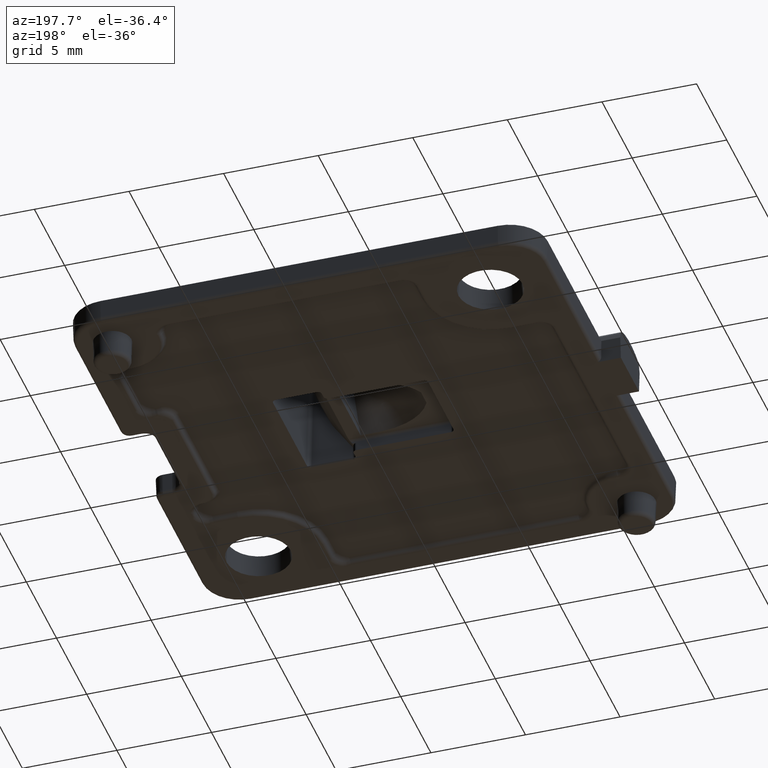
[diagram: clean part render]
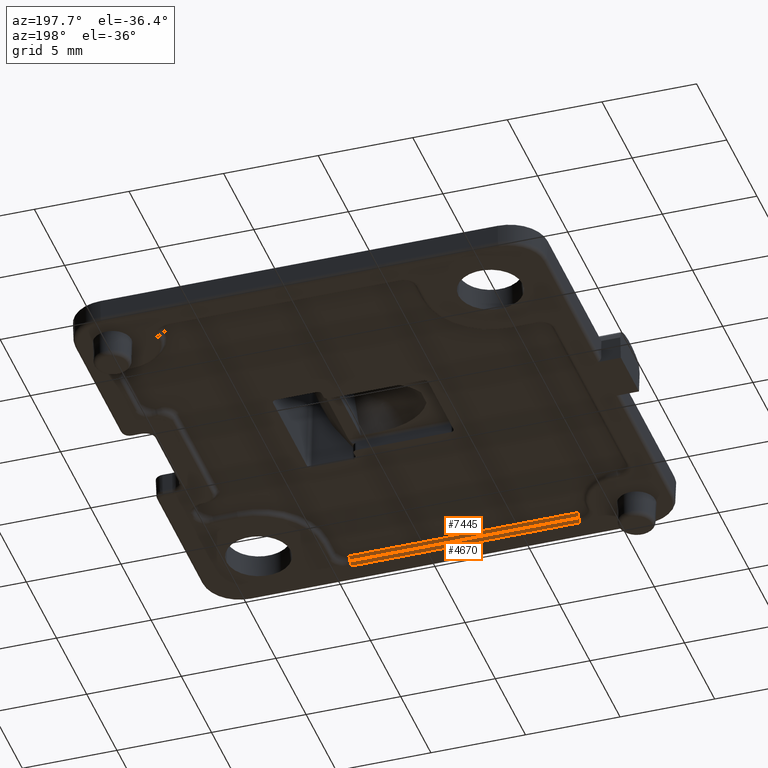
[diagram: same view with one multi-face feature highlighted, each face labeled with its STEP entity id]
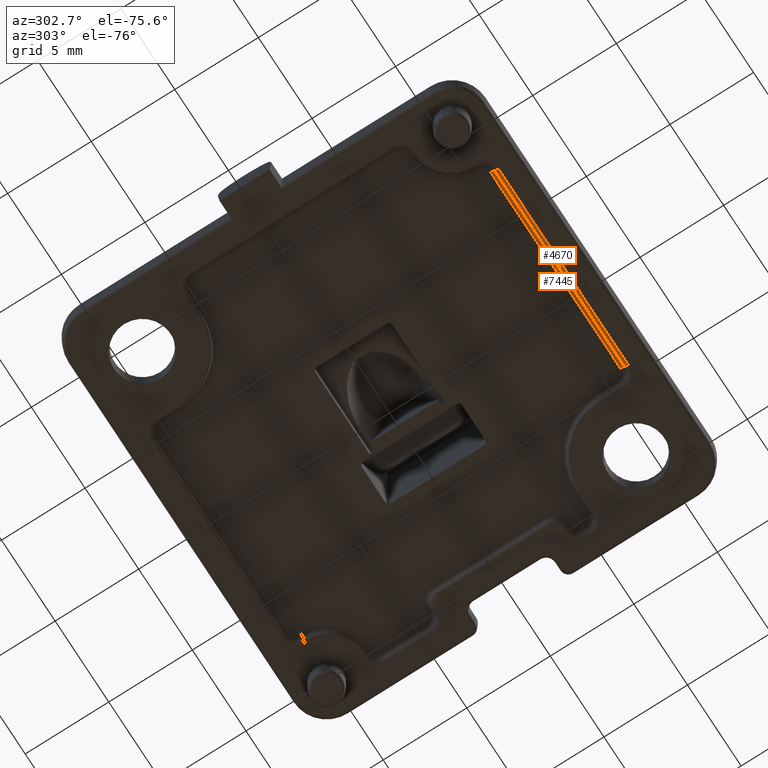
[diagram: same view with one multi-face feature highlighted, each face labeled with its STEP entity id]
A machine part, auxiliary view. The highlighted faces form ONE feature: a constant-radius fillet chain: 2 tangent blend faces with common blend radius 0.25 mm. The faces share edges in the B-rep.
A second angle (auxiliary view) of the same feature is appended — it is thin or edge-on in the first view.
Their STEP definitions:
[1] entity #4670 (Cylinder):
#267 = EDGE_CURVE ( 'NONE', #7238, #5785, #6301, .T. ) ;
#314 = EDGE_CURVE ( 'NONE', #7238, #3998, #7555, .T. ) ;
#320 = AXIS2_PLACEMENT_3D ( 'NONE', #7326, #3596, #7949 ) ;
#389 = EDGE_LOOP ( 'NONE', ( #6948, #7601, #2118, #6005 ) ) ;
#450 = AXIS2_PLACEMENT_3D ( 'NONE', #3462, #7820, #4092 ) ;
#832 = LINE ( 'NONE', #7209, #7426 ) ;
#1323 = CARTESIAN_POINT ( 'NONE',  ( -7.298375703292114400, -11.20635914494629600, 0.0000000000000000000 ) ) ;
#1340 = VECTOR ( 'NONE', #2884, 1000.000000000000000 ) ;
#2118 = ORIENTED_EDGE ( 'NONE', *, *, #7067, .F. ) ;
#2685 = CARTESIAN_POINT ( 'NONE',  ( -7.298375703292114400, -10.97723036019850400, 0.1500000000000008500 ) ) ;
#2884 = DIRECTION ( 'NONE',  ( -1.000000000000000000, -2.569960705150824400E-016, 0.0000000000000000000 ) ) ;
#3225 = CYLINDRICAL_SURFACE ( 'NONE', #7654, 0.2500000000000002200 ) ;
#3377 = VERTEX_POINT ( 'NONE', #1323 ) ;
#3460 = CARTESIAN_POINT ( 'NONE',  ( -8.000000000000000000, -10.97723036019850400, 0.1500000000000000800 ) ) ;
#3462 = CARTESIAN_POINT ( 'NONE',  ( -7.298375703292114400, -11.20635914494629600, 0.2500000000000004400 ) ) ;
#3480 = DIRECTION ( 'NONE',  ( 1.000000000000000000, 2.569960705150824400E-016, -0.0000000000000000000 ) ) ;
#3596 = DIRECTION ( 'NONE',  ( -1.000000000000000000, 0.0000000000000000000, -0.0000000000000000000 ) ) ;
#3655 = CARTESIAN_POINT ( 'NONE',  ( 4.798375703292118800, -10.97723036019850100, 0.1499999999999996900 ) ) ;
#3998 = VERTEX_POINT ( 'NONE', #7363 ) ;
#4048 = CARTESIAN_POINT ( 'NONE',  ( -8.000000000000000000, -11.20635914494629800, 0.2500000000000000000 ) ) ;
#4092 = DIRECTION ( 'NONE',  ( 0.0000000000000000000, 0.0000000000000000000, 1.000000000000000000 ) ) ;
#4243 = EDGE_CURVE ( 'NONE', #3377, #3998, #832, .T. ) ;
#4670 = ADVANCED_FACE ( 'NONE', ( #6553 ), #3225, .T. ) ;
#5353 = DIRECTION ( 'NONE',  ( -1.000000000000000000, -2.569960705150824400E-016, 0.0000000000000000000 ) ) ;
#5548 = CIRCLE ( 'NONE', #450, 0.2500000000000000000 ) ;
#5785 = VERTEX_POINT ( 'NONE', #2685 ) ;
#5989 = DIRECTION ( 'NONE',  ( 0.0000000000000000000, -1.000000000000000000, 0.0000000000000000000 ) ) ;
#6005 = ORIENTED_EDGE ( 'NONE', *, *, #267, .F. ) ;
#6301 = LINE ( 'NONE', #3460, #1340 ) ;
#6553 = FACE_OUTER_BOUND ( 'NONE', #389, .T. ) ;
#6948 = ORIENTED_EDGE ( 'NONE', *, *, #314, .T. ) ;
#7067 = EDGE_CURVE ( 'NONE', #5785, #3377, #5548, .T. ) ;
#7209 = CARTESIAN_POINT ( 'NONE',  ( -10.49999999999999300, -11.20635914494629600, 0.0000000000000000000 ) ) ;
#7238 = VERTEX_POINT ( 'NONE', #3655 ) ;
#7326 = CARTESIAN_POINT ( 'NONE',  ( 4.798375703292118800, -11.20635914494629200, 0.2500000000000002200 ) ) ;
#7363 = CARTESIAN_POINT ( 'NONE',  ( 4.798375703292118800, -11.20635914494629400, 0.0000000000000000000 ) ) ;
#7426 = VECTOR ( 'NONE', #3480, 1000.000000000000000 ) ;
#7555 = CIRCLE ( 'NONE', #320, 0.2500000000000000000 ) ;
#7601 = ORIENTED_EDGE ( 'NONE', *, *, #4243, .F. ) ;
#7654 = AXIS2_PLACEMENT_3D ( 'NONE', #4048, #5353, #5989 ) ;
#7820 = DIRECTION ( 'NONE',  ( -1.000000000000000000, 0.0000000000000000000, -0.0000000000000000000 ) ) ;
#7949 = DIRECTION ( 'NONE',  ( 0.0000000000000000000, 0.0000000000000000000, 1.000000000000000000 ) ) ;
[2] entity #7445 (Cylinder):
#52 = CIRCLE ( 'NONE', #286, 0.2500000000000000000 ) ;
#103 = EDGE_CURVE ( 'NONE', #7394, #1566, #3966, .T. ) ;
#267 = EDGE_CURVE ( 'NONE', #7238, #5785, #6301, .T. ) ;
#286 = AXIS2_PLACEMENT_3D ( 'NONE', #3290, #7649, #3926 ) ;
#419 = FACE_OUTER_BOUND ( 'NONE', #1114, .T. ) ;
#483 = VECTOR ( 'NONE', #745, 1000.000000000000000 ) ;
#569 = DIRECTION ( 'NONE',  ( 1.000000000000000000, 0.0000000000000000000, -0.0000000000000000000 ) ) ;
#745 = DIRECTION ( 'NONE',  ( -1.000000000000000000, -2.569960705150824400E-016, 0.0000000000000000000 ) ) ;
#1021 = ORIENTED_EDGE ( 'NONE', *, *, #267, .T. ) ;
#1114 = EDGE_LOOP ( 'NONE', ( #5475, #1021, #1178, #2704 ) ) ;
#1178 = ORIENTED_EDGE ( 'NONE', *, *, #3412, .F. ) ;
#1340 = VECTOR ( 'NONE', #2884, 1000.000000000000000 ) ;
#1373 = DIRECTION ( 'NONE',  ( 0.0000000000000000000, -1.000000000000000000, 0.0000000000000000000 ) ) ;
#1566 = VERTEX_POINT ( 'NONE', #3326 ) ;
#2685 = CARTESIAN_POINT ( 'NONE',  ( -7.298375703292114400, -10.97723036019850400, 0.1500000000000008500 ) ) ;
#2704 = ORIENTED_EDGE ( 'NONE', *, *, #103, .F. ) ;
#2766 = AXIS2_PLACEMENT_3D ( 'NONE', #3845, #5097, #1373 ) ;
#2884 = DIRECTION ( 'NONE',  ( -1.000000000000000000, -2.569960705150824400E-016, 0.0000000000000000000 ) ) ;
#3174 = CARTESIAN_POINT ( 'NONE',  ( 4.798375703292118800, -10.74810157545070900, 0.2999999999999999900 ) ) ;
#3290 = CARTESIAN_POINT ( 'NONE',  ( -7.298375703292114400, -10.74810157545071300, 0.04999999999999996800 ) ) ;
#3326 = CARTESIAN_POINT ( 'NONE',  ( -7.298375703292114400, -10.74810157545071100, 0.2999999999999999900 ) ) ;
#3412 = EDGE_CURVE ( 'NONE', #1566, #5785, #52, .T. ) ;
#3460 = CARTESIAN_POINT ( 'NONE',  ( -8.000000000000000000, -10.97723036019850400, 0.1500000000000000800 ) ) ;
#3655 = CARTESIAN_POINT ( 'NONE',  ( 4.798375703292118800, -10.97723036019850100, 0.1499999999999996900 ) ) ;
#3845 = CARTESIAN_POINT ( 'NONE',  ( -8.000000000000000000, -10.74810157545071300, 0.04999999999999996800 ) ) ;
#3926 = DIRECTION ( 'NONE',  ( 0.0000000000000000000, 0.0000000000000000000, -1.000000000000000000 ) ) ;
#3966 = LINE ( 'NONE', #6324, #483 ) ;
#4276 = CARTESIAN_POINT ( 'NONE',  ( 4.798375703292118800, -10.74810157545070900, 0.04999999999999996800 ) ) ;
#4897 = DIRECTION ( 'NONE',  ( 0.0000000000000000000, 0.0000000000000000000, -1.000000000000000000 ) ) ;
#5097 = DIRECTION ( 'NONE',  ( -1.000000000000000000, -2.569960705150824400E-016, 0.0000000000000000000 ) ) ;
#5167 = CYLINDRICAL_SURFACE ( 'NONE', #2766, 0.2500000000000002200 ) ;
#5475 = ORIENTED_EDGE ( 'NONE', *, *, #5604, .T. ) ;
#5604 = EDGE_CURVE ( 'NONE', #7394, #7238, #5957, .T. ) ;
#5785 = VERTEX_POINT ( 'NONE', #2685 ) ;
#5957 = CIRCLE ( 'NONE', #6363, 0.2500000000000000000 ) ;
#6301 = LINE ( 'NONE', #3460, #1340 ) ;
#6324 = CARTESIAN_POINT ( 'NONE',  ( 9.000000000000007100, -10.74810157545070900, 0.2999999999999999900 ) ) ;
#6363 = AXIS2_PLACEMENT_3D ( 'NONE', #4276, #569, #4897 ) ;
#7238 = VERTEX_POINT ( 'NONE', #3655 ) ;
#7394 = VERTEX_POINT ( 'NONE', #3174 ) ;
#7445 = ADVANCED_FACE ( 'NONE', ( #419 ), #5167, .F. ) ;
#7649 = DIRECTION ( 'NONE',  ( 1.000000000000000000, 0.0000000000000000000, -0.0000000000000000000 ) ) ;